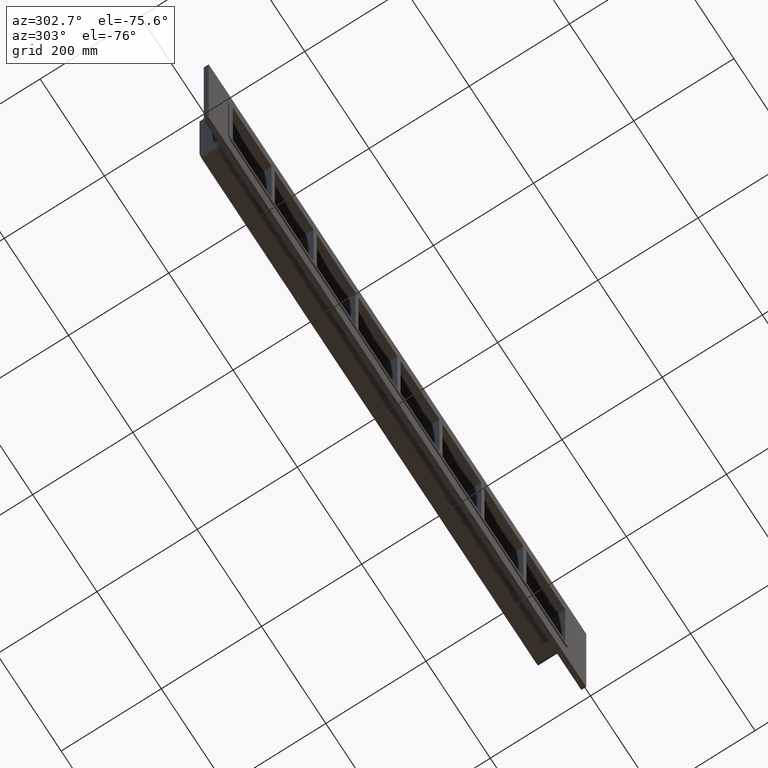
[diagram: clean part render]
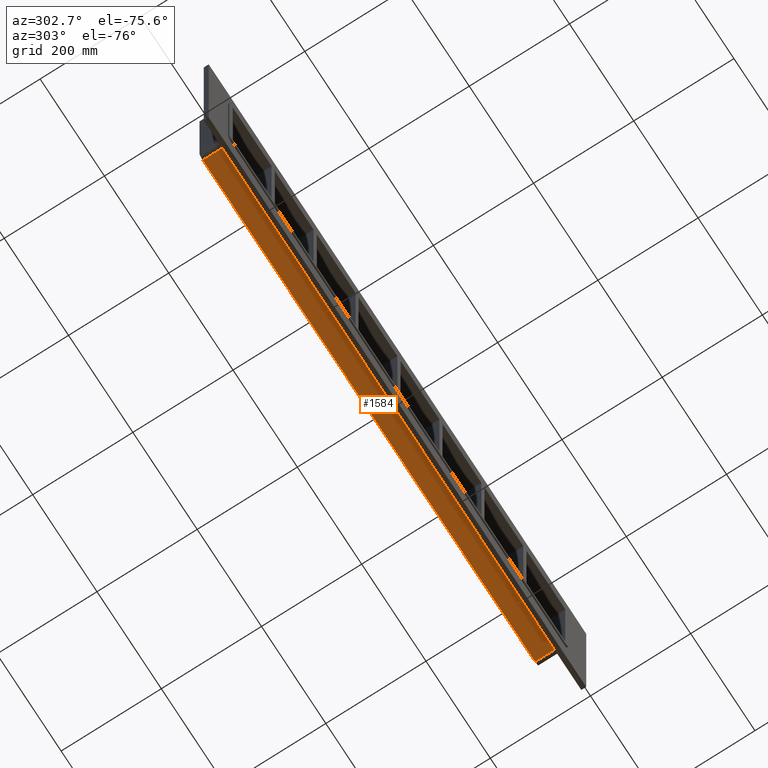
[diagram: same view with one face highlighted and labeled with its STEP entity id]
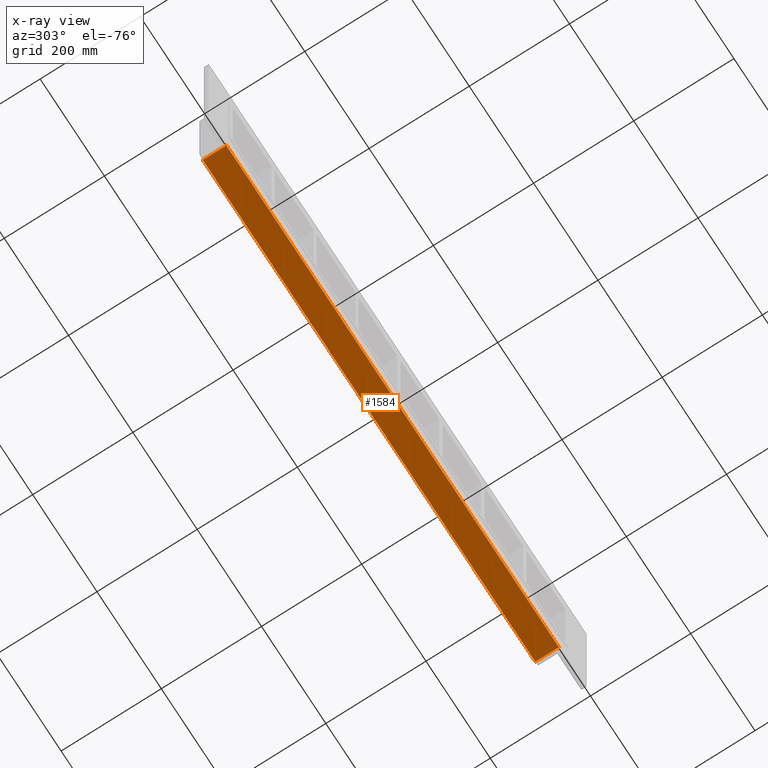
[diagram: x-ray of the same camera — body ghosted, the highlighted face saturated]
A machine part, auxiliary view. The second image highlights one B-rep face of the part: STEP entity #1584.
The next image is the same camera in x-ray: the body ghosted, the highlighted face saturated — about 0% of this face is hidden behind the body in this view.
In plain terms, the highlighted planar face has unit normal (0, 0, -1).
Its self-contained STEP definition (entity closure, byte-faithful):
#1055=CARTESIAN_POINT('',(-517.0,10.0,-119.00000000000003));
#1056=VERTEX_POINT('',#1055);
#1066=CARTESIAN_POINT('',(517.0,10.0,-119.00000000000003));
#1067=VERTEX_POINT('',#1066);
#1068=CARTESIAN_POINT('',(517.0,10.0,-119.00000000000003));
#1069=DIRECTION('',(-1.0,0.0,0.0));
#1070=VECTOR('',#1069,1034.0);
#1071=LINE('',#1068,#1070);
#1072=EDGE_CURVE('',#1067,#1056,#1071,.T.);
#1493=CARTESIAN_POINT('',(517.0,57.0,-119.00000000000003));
#1494=VERTEX_POINT('',#1493);
#1495=CARTESIAN_POINT('',(517.0,10.0,-119.00000000000003));
#1496=DIRECTION('',(0.0,1.0,0.0));
#1497=VECTOR('',#1496,47.0);
#1498=LINE('',#1495,#1497);
#1499=EDGE_CURVE('',#1067,#1494,#1498,.T.);
#1561=CARTESIAN_POINT('',(527.0,0.0,-119.00000000000003));
#1562=DIRECTION('',(0.0,0.0,-1.0));
#1563=DIRECTION('',(-1.0,0.0,0.0));
#1564=AXIS2_PLACEMENT_3D('',#1561,#1562,#1563);
#1565=PLANE('',#1564);
#1566=ORIENTED_EDGE('',*,*,#1072,.T.);
#1567=CARTESIAN_POINT('',(-517.0,57.0,-119.00000000000003));
#1568=VERTEX_POINT('',#1567);
#1569=CARTESIAN_POINT('',(-517.0,57.0,-119.00000000000003));
#1570=DIRECTION('',(0.0,-1.0,0.0));
#1571=VECTOR('',#1570,47.0);
#1572=LINE('',#1569,#1571);
#1573=EDGE_CURVE('',#1568,#1056,#1572,.T.);
#1574=ORIENTED_EDGE('',*,*,#1573,.F.);
#1575=CARTESIAN_POINT('',(516.99999999999989,57.0,-119.00000000000003));
#1576=DIRECTION('',(-1.0,0.0,0.0));
#1577=VECTOR('',#1576,1034.0);
#1578=LINE('',#1575,#1577);
#1579=EDGE_CURVE('',#1494,#1568,#1578,.T.);
#1580=ORIENTED_EDGE('',*,*,#1579,.F.);
#1581=ORIENTED_EDGE('',*,*,#1499,.F.);
#1582=EDGE_LOOP('',(#1566,#1574,#1580,#1581));
#1583=FACE_OUTER_BOUND('',#1582,.T.);
#1584=ADVANCED_FACE('',(#1583),#1565,.T.);